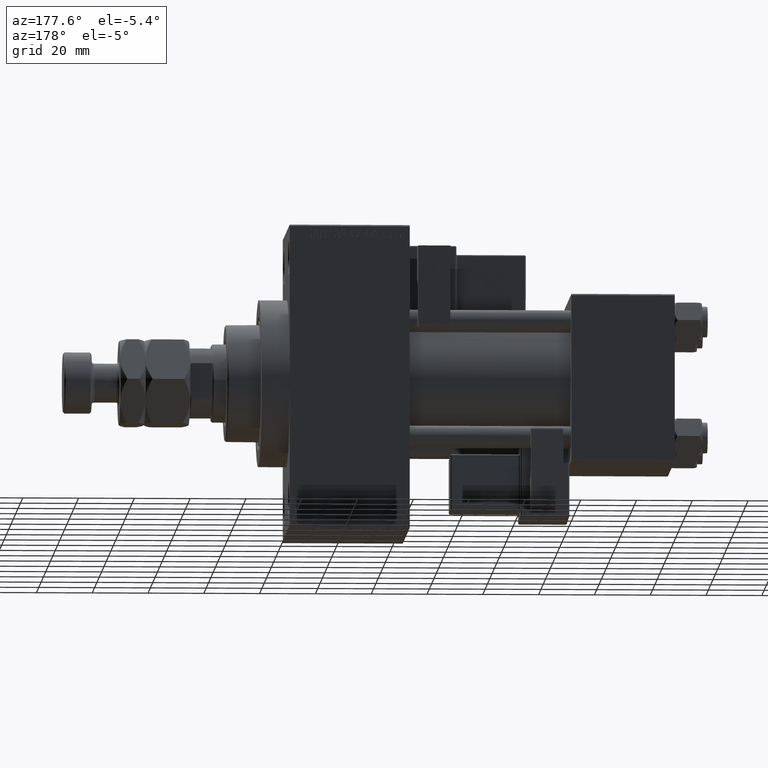
[diagram: clean part render]
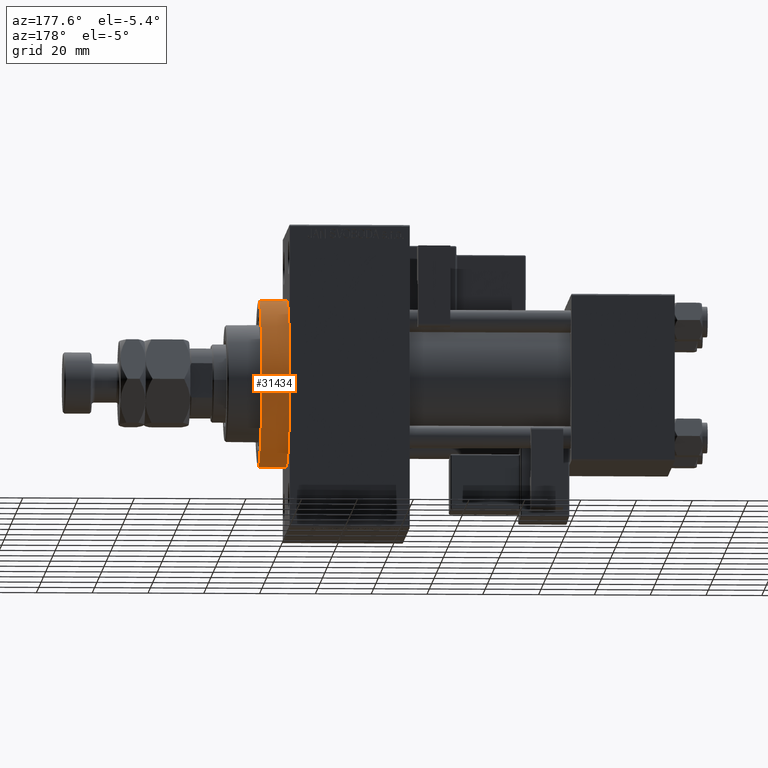
[diagram: same view with one face highlighted and labeled with its STEP entity id]
A machine part, auxiliary view. The second image highlights one B-rep face of the part: STEP entity #31434.
In plain terms, the highlighted cylindrical surface (partial cylindrical patch) has radius 30 mm, axis along (-1, -0, -0).
Its self-contained STEP definition (entity closure, byte-faithful):
#235 = AXIS2_PLACEMENT_3D ( 'NONE', #34198, #34699, #10544 ) ;
#492 = ORIENTED_EDGE ( 'NONE', *, *, #43033, .T. ) ;
#3565 = DIRECTION ( 'NONE',  ( 0.000000000000000000, 0.000000000000000000, -1.000000000000000000 ) ) ;
#5146 = CARTESIAN_POINT ( 'NONE',  ( 138.0000000000000000, 0.000000000000000000, 0.000000000000000000 ) ) ;
#6536 = CARTESIAN_POINT ( 'NONE',  ( 138.0000000000000000, 0.000000000000000000, 30.00000000000000000 ) ) ;
#7161 = ORIENTED_EDGE ( 'NONE', *, *, #43398, .F. ) ;
#9778 = FACE_OUTER_BOUND ( 'NONE', #50951, .T. ) ;
#10447 = CARTESIAN_POINT ( 'NONE',  ( 148.0000000000000284, 3.673940397442059178E-15, -30.00000000000000000 ) ) ;
#10544 = DIRECTION ( 'NONE',  ( 0.000000000000000000, 0.000000000000000000, -1.000000000000000000 ) ) ;
#10694 = DIRECTION ( 'NONE',  ( -1.000000000000000000, -0.000000000000000000, -0.000000000000000000 ) ) ;
#11201 = DIRECTION ( 'NONE',  ( -1.000000000000000000, -0.000000000000000000, -0.000000000000000000 ) ) ;
#11239 = VERTEX_POINT ( 'NONE', #38577 ) ;
#13406 = ORIENTED_EDGE ( 'NONE', *, *, #21878, .T. ) ;
#14833 = LINE ( 'NONE', #46566, #47138 ) ;
#17086 = CARTESIAN_POINT ( 'NONE',  ( 148.0000000000000284, 3.673940397442059178E-15, -30.00000000000000000 ) ) ;
#17350 = DIRECTION ( 'NONE',  ( 1.000000000000000000, 0.000000000000000000, 0.000000000000000000 ) ) ;
#17662 = EDGE_CURVE ( 'NONE', #25292, #11239, #46368, .T. ) ;
#18453 = CIRCLE ( 'NONE', #25084, 30.00000000000000000 ) ;
#18590 = EDGE_CURVE ( 'NONE', #24226, #48126, #14833, .T. ) ;
#21878 = EDGE_CURVE ( 'NONE', #40875, #25292, #46821, .T. ) ;
#23931 = AXIS2_PLACEMENT_3D ( 'NONE', #5146, #17350, #36596 ) ;
#24226 = VERTEX_POINT ( 'NONE', #45179 ) ;
#24725 = DIRECTION ( 'NONE',  ( 0.000000000000000000, 0.000000000000000000, 1.000000000000000000 ) ) ;
#25084 = AXIS2_PLACEMENT_3D ( 'NONE', #46990, #27213, #3565 ) ;
#25292 = VERTEX_POINT ( 'NONE', #39879 ) ;
#27213 = DIRECTION ( 'NONE',  ( 1.000000000000000000, 0.000000000000000000, 0.000000000000000000 ) ) ;
#27610 = CARTESIAN_POINT ( 'NONE',  ( 148.0000000000000284, 0.000000000000000000, 0.000000000000000000 ) ) ;
#28155 = VECTOR ( 'NONE', #11201, 1000.000000000000000 ) ;
#31434 = ADVANCED_FACE ( 'NONE', ( #9778 ), #35158, .T. ) ;
#32128 = ORIENTED_EDGE ( 'NONE', *, *, #17662, .T. ) ;
#34198 = CARTESIAN_POINT ( 'NONE',  ( 148.0000000000000284, 0.000000000000000000, 0.000000000000000000 ) ) ;
#34699 = DIRECTION ( 'NONE',  ( 1.000000000000000000, 0.000000000000000000, 0.000000000000000000 ) ) ;
#35158 = CYLINDRICAL_SURFACE ( 'NONE', #36710, 30.00000000000000000 ) ;
#36225 = ORIENTED_EDGE ( 'NONE', *, *, #18590, .F. ) ;
#36596 = DIRECTION ( 'NONE',  ( 0.000000000000000000, 0.000000000000000000, -1.000000000000000000 ) ) ;
#36710 = AXIS2_PLACEMENT_3D ( 'NONE', #27610, #51264, #24725 ) ;
#37609 = CIRCLE ( 'NONE', #235, 30.00000000000000000 ) ;
#38577 = CARTESIAN_POINT ( 'NONE',  ( 138.0000000000000000, 30.00000000000000000, 0.000000000000000000 ) ) ;
#39879 = CARTESIAN_POINT ( 'NONE',  ( 138.0000000000000000, 3.673940397442059178E-15, -30.00000000000000000 ) ) ;
#40875 = VERTEX_POINT ( 'NONE', #17086 ) ;
#43033 = EDGE_CURVE ( 'NONE', #11239, #48126, #18453, .T. ) ;
#43398 = EDGE_CURVE ( 'NONE', #40875, #24226, #37609, .T. ) ;
#45179 = CARTESIAN_POINT ( 'NONE',  ( 148.0000000000000284, 0.000000000000000000, 30.00000000000000000 ) ) ;
#46368 = CIRCLE ( 'NONE', #23931, 30.00000000000000000 ) ;
#46566 = CARTESIAN_POINT ( 'NONE',  ( 148.0000000000000284, 0.000000000000000000, 30.00000000000000000 ) ) ;
#46821 = LINE ( 'NONE', #10447, #28155 ) ;
#46990 = CARTESIAN_POINT ( 'NONE',  ( 138.0000000000000000, 0.000000000000000000, 0.000000000000000000 ) ) ;
#47138 = VECTOR ( 'NONE', #10694, 1000.000000000000000 ) ;
#48126 = VERTEX_POINT ( 'NONE', #6536 ) ;
#50951 = EDGE_LOOP ( 'NONE', ( #7161, #13406, #32128, #492, #36225 ) ) ;
#51264 = DIRECTION ( 'NONE',  ( -1.000000000000000000, -0.000000000000000000, -0.000000000000000000 ) ) ;